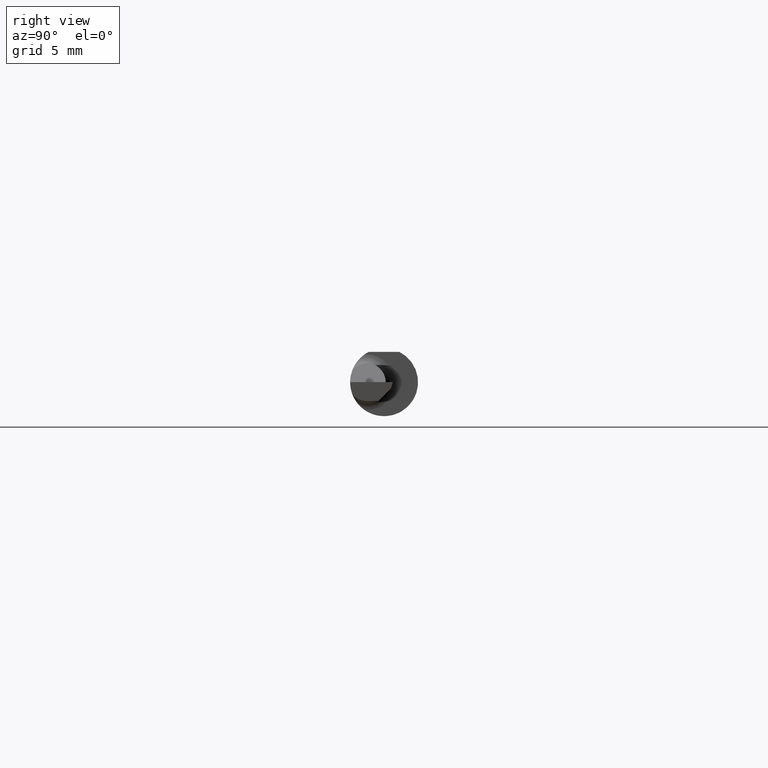
[diagram: clean part render]
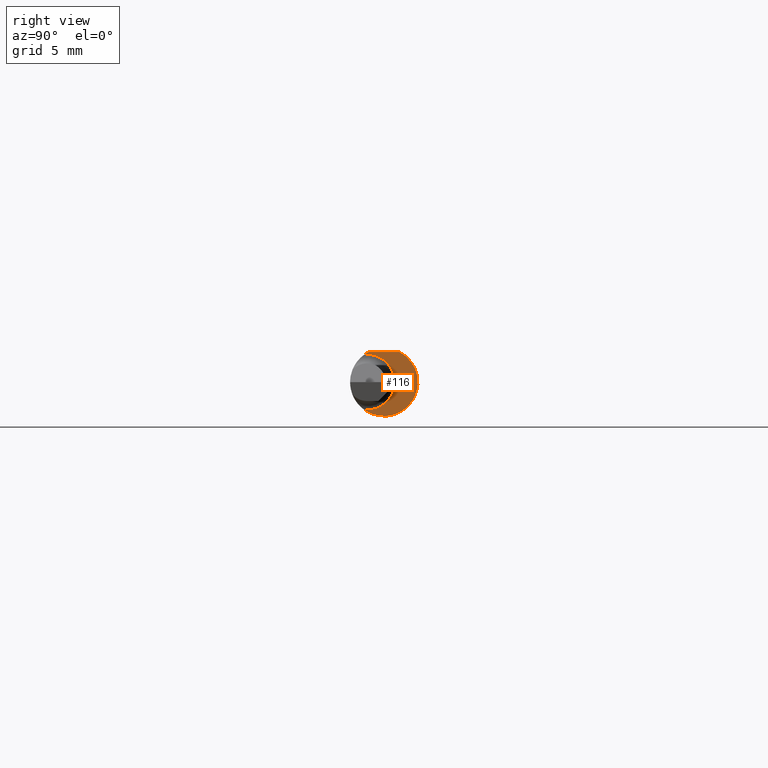
[diagram: same view with one face highlighted and labeled with its STEP entity id]
A machine part, right view. The second image highlights one B-rep face of the part: STEP entity #116.
In plain terms, the highlighted planar face has unit normal (1, -0, 0).
Its self-contained STEP definition (entity closure, byte-faithful):
#19 = CARTESIAN_POINT ( 'NONE',  ( 1.359999999999999876, -0.04209513035969843220, 0.08360000000000000764 ) ) ;
#32 = DIRECTION ( 'NONE',  ( 0.000000000000000000, 1.000000000000000000, 0.000000000000000000 ) ) ;
#40 = AXIS2_PLACEMENT_3D ( 'NONE', #551, #594, #72 ) ;
#49 = CIRCLE ( 'NONE', #306, 0.09360000000000001652 ) ;
#58 = ORIENTED_EDGE ( 'NONE', *, *, #460, .T. ) ;
#69 = CARTESIAN_POINT ( 'NONE',  ( 1.359999999999999876, 0.1436000000000000332, 0.08359999999999999376 ) ) ;
#72 = DIRECTION ( 'NONE',  ( 0.000000000000000000, -1.000000000000000000, 0.000000000000000000 ) ) ;
#82 = CARTESIAN_POINT ( 'NONE',  ( 1.359999999999999876, 0.000000000000000000, 0.000000000000000000 ) ) ;
#116 = ADVANCED_FACE ( 'NONE', ( #171 ), #516, .T. ) ;
#171 = FACE_OUTER_BOUND ( 'NONE', #571, .T. ) ;
#172 = EDGE_CURVE ( 'NONE', #583, #567, #49, .T. ) ;
#176 = AXIS2_PLACEMENT_3D ( 'NONE', #403, #596, #32 ) ;
#181 = DIRECTION ( 'NONE',  ( 4.268512490100411279E-18, 1.000000000000000000, 0.000000000000000000 ) ) ;
#183 = CARTESIAN_POINT ( 'NONE',  ( 1.359999999999999876, -0.05372210526315804313, -0.07664786628533222512 ) ) ;
#187 = ORIENTED_EDGE ( 'NONE', *, *, #172, .T. ) ;
#190 = CARTESIAN_POINT ( 'NONE',  ( 1.359999999999999876, -0.05372210526315804313, 0.07664786628533222512 ) ) ;
#221 = LINE ( 'NONE', #69, #405 ) ;
#237 = CIRCLE ( 'NONE', #176, 0.09360000000000001652 ) ;
#271 = DIRECTION ( 'NONE',  ( -4.268512490100411279E-18, -1.000000000000000000, 1.189000693621284344E-16 ) ) ;
#284 = CARTESIAN_POINT ( 'NONE',  ( 1.359999999999999876, 0.04209513035969836975, 0.08360000000000000764 ) ) ;
#306 = AXIS2_PLACEMENT_3D ( 'NONE', #82, #320, #467 ) ;
#316 = CARTESIAN_POINT ( 'NONE',  ( 1.359999999999999876, 0.02939999999999994007, 0.000000000000000000 ) ) ;
#320 = DIRECTION ( 'NONE',  ( 1.000000000000000000, -4.268512490100411279E-18, 0.000000000000000000 ) ) ;
#351 = VERTEX_POINT ( 'NONE', #19 ) ;
#403 = CARTESIAN_POINT ( 'NONE',  ( 1.359999999999999876, 0.000000000000000000, 0.000000000000000000 ) ) ;
#405 = VECTOR ( 'NONE', #271, 39.37007874015748143 ) ;
#422 = EDGE_CURVE ( 'NONE', #555, #583, #429, .T. ) ;
#429 = CIRCLE ( 'NONE', #40, 0.07689999999999989899 ) ;
#460 = EDGE_CURVE ( 'NONE', #567, #351, #221, .T. ) ;
#467 = DIRECTION ( 'NONE',  ( 0.000000000000000000, 1.000000000000000000, 0.000000000000000000 ) ) ;
#469 = EDGE_CURVE ( 'NONE', #351, #555, #237, .T. ) ;
#507 = ORIENTED_EDGE ( 'NONE', *, *, #422, .T. ) ;
#512 = DIRECTION ( 'NONE',  ( 1.000000000000000000, -4.268512490100411279E-18, 0.000000000000000000 ) ) ;
#516 = PLANE ( 'NONE',  #546 ) ;
#523 = ORIENTED_EDGE ( 'NONE', *, *, #469, .T. ) ;
#546 = AXIS2_PLACEMENT_3D ( 'NONE', #316, #512, #181 ) ;
#551 = CARTESIAN_POINT ( 'NONE',  ( 1.359999999999999876, -0.04749999999999999362, 0.000000000000000000 ) ) ;
#555 = VERTEX_POINT ( 'NONE', #190 ) ;
#567 = VERTEX_POINT ( 'NONE', #284 ) ;
#571 = EDGE_LOOP ( 'NONE', ( #187, #58, #523, #507 ) ) ;
#583 = VERTEX_POINT ( 'NONE', #183 ) ;
#594 = DIRECTION ( 'NONE',  ( -1.000000000000000000, 4.268512490100411279E-18, -0.000000000000000000 ) ) ;
#596 = DIRECTION ( 'NONE',  ( 1.000000000000000000, -4.268512490100411279E-18, 0.000000000000000000 ) ) ;